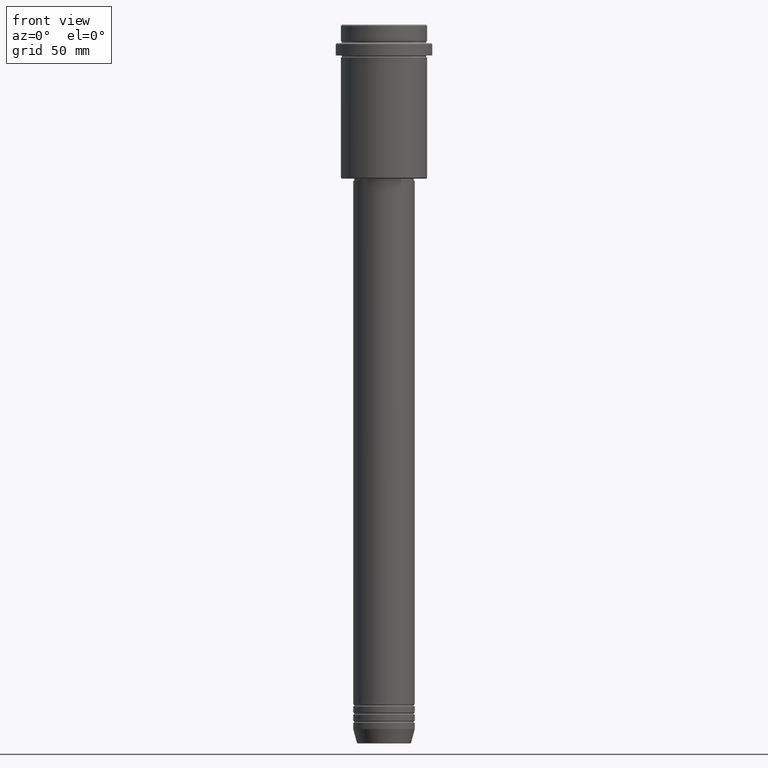
[diagram: clean part render]
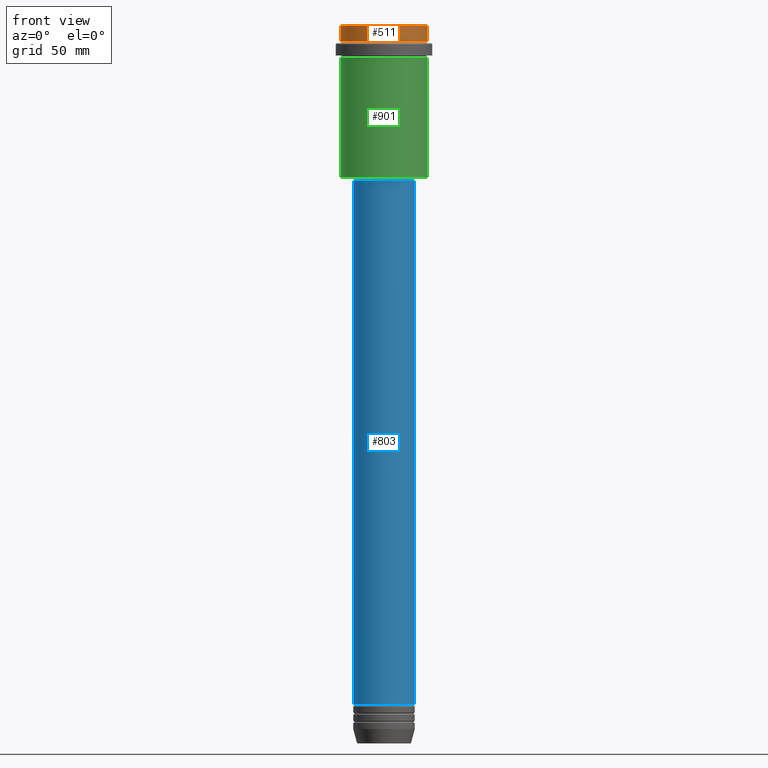
[diagram: same view with three faces highlighted in distinct colors, each labeled with its STEP entity id]
A machine part, front view with three faces highlighted in distinct colors.
Their STEP definitions:

[orange] entity #511 — the highlighted cylindrical surface (partial cylindrical patch) has radius 21 mm, axis along (-0, -0, 1).
#5 = AXIS2_PLACEMENT_3D ( 'NONE', #645, #1087, #535 ) ;
#83 = ORIENTED_EDGE ( 'NONE', *, *, #355, .T. ) ;
#102 = DIRECTION ( 'NONE',  ( 1.000000000000000000, 0.000000000000000000, 0.000000000000000000 ) ) ;
#163 = CARTESIAN_POINT ( 'NONE',  ( -20.99999999999999645, 2.571758278209441267E-15, -0.5000000000000350830 ) ) ;
#164 = CARTESIAN_POINT ( 'NONE',  ( 20.99999999999999645, 0.000000000000000000, -0.5000000000000350830 ) ) ;
#262 = ORIENTED_EDGE ( 'NONE', *, *, #608, .F. ) ;
#263 = EDGE_CURVE ( 'NONE', #827, #1275, #897, .T. ) ;
#274 = CARTESIAN_POINT ( 'NONE',  ( 0.000000000000000000, 0.000000000000000000, 0.000000000000000000 ) ) ;
#282 = ORIENTED_EDGE ( 'NONE', *, *, #263, .T. ) ;
#322 = DIRECTION ( 'NONE',  ( -0.000000000000000000, -0.000000000000000000, 1.000000000000000000 ) ) ;
#355 = EDGE_CURVE ( 'NONE', #1382, #490, #427, .T. ) ;
#369 = LINE ( 'NONE', #580, #787 ) ;
#383 = FACE_OUTER_BOUND ( 'NONE', #725, .T. ) ;
#427 = CIRCLE ( 'NONE', #5, 20.99999999999999645 ) ;
#464 = EDGE_CURVE ( 'NONE', #1275, #1382, #369, .T. ) ;
#490 = VERTEX_POINT ( 'NONE', #163 ) ;
#511 = ADVANCED_FACE ( 'NONE', ( #383 ), #829, .T. ) ;
#535 = DIRECTION ( 'NONE',  ( 1.000000000000000000, 0.000000000000000000, 0.000000000000000000 ) ) ;
#561 = AXIS2_PLACEMENT_3D ( 'NONE', #1001, #1185, #1209 ) ;
#579 = CARTESIAN_POINT ( 'NONE',  ( 20.99999999999999645, 0.000000000000000000, -7.999999999999998224 ) ) ;
#580 = CARTESIAN_POINT ( 'NONE',  ( 20.99999999999999645, 0.000000000000000000, 0.000000000000000000 ) ) ;
#608 = EDGE_CURVE ( 'NONE', #827, #490, #1094, .T. ) ;
#645 = CARTESIAN_POINT ( 'NONE',  ( 0.000000000000000000, 0.000000000000000000, -0.5000000000000350830 ) ) ;
#725 = EDGE_LOOP ( 'NONE', ( #262, #282, #888, #83 ) ) ;
#787 = VECTOR ( 'NONE', #1226, 1000.000000000000000 ) ;
#827 = VERTEX_POINT ( 'NONE', #966 ) ;
#829 = CYLINDRICAL_SURFACE ( 'NONE', #898, 20.99999999999999645 ) ;
#865 = CARTESIAN_POINT ( 'NONE',  ( -20.99999999999999645, 2.571758278209441267E-15, 0.000000000000000000 ) ) ;
#888 = ORIENTED_EDGE ( 'NONE', *, *, #464, .T. ) ;
#897 = CIRCLE ( 'NONE', #561, 20.99999999999999645 ) ;
#898 = AXIS2_PLACEMENT_3D ( 'NONE', #274, #322, #102 ) ;
#966 = CARTESIAN_POINT ( 'NONE',  ( -20.99999999999999645, 2.571758278209441267E-15, -7.999999999999998224 ) ) ;
#977 = DIRECTION ( 'NONE',  ( -0.000000000000000000, -0.000000000000000000, 1.000000000000000000 ) ) ;
#1001 = CARTESIAN_POINT ( 'NONE',  ( 0.000000000000000000, 0.000000000000000000, -7.999999999999998224 ) ) ;
#1087 = DIRECTION ( 'NONE',  ( 0.000000000000000000, 0.000000000000000000, -1.000000000000000000 ) ) ;
#1094 = LINE ( 'NONE', #865, #1190 ) ;
#1185 = DIRECTION ( 'NONE',  ( -0.000000000000000000, -0.000000000000000000, 1.000000000000000000 ) ) ;
#1190 = VECTOR ( 'NONE', #977, 1000.000000000000000 ) ;
#1209 = DIRECTION ( 'NONE',  ( 1.000000000000000000, 0.000000000000000000, 0.000000000000000000 ) ) ;
#1226 = DIRECTION ( 'NONE',  ( -0.000000000000000000, -0.000000000000000000, 1.000000000000000000 ) ) ;
#1275 = VERTEX_POINT ( 'NONE', #579 ) ;
#1382 = VERTEX_POINT ( 'NONE', #164 ) ;

[blue] entity #803 — the highlighted cylindrical surface (edge-blend (fillet) strip) has radius 15 mm, axis along (-0, -0, 1).
#6 = CARTESIAN_POINT ( 'NONE',  ( 15.00000000000000000, 0.000000000000000000, -75.99999999999992895 ) ) ;
#21 = VERTEX_POINT ( 'NONE', #394 ) ;
#141 = ORIENTED_EDGE ( 'NONE', *, *, #841, .F. ) ;
#192 = VECTOR ( 'NONE', #428, 1000.000000000000000 ) ;
#207 = EDGE_CURVE ( 'NONE', #1409, #1221, #650, .T. ) ;
#273 = AXIS2_PLACEMENT_3D ( 'NONE', #733, #931, #1368 ) ;
#292 = AXIS2_PLACEMENT_3D ( 'NONE', #1176, #758, #1276 ) ;
#378 = ORIENTED_EDGE ( 'NONE', *, *, #872, .F. ) ;
#379 = FACE_OUTER_BOUND ( 'NONE', #567, .T. ) ;
#394 = CARTESIAN_POINT ( 'NONE',  ( -15.00000000000000000, 1.836970198721029589E-15, -330.9999999999998863 ) ) ;
#428 = DIRECTION ( 'NONE',  ( -0.000000000000000000, -0.000000000000000000, 1.000000000000000000 ) ) ;
#531 = DIRECTION ( 'NONE',  ( -0.000000000000000000, -0.000000000000000000, 1.000000000000000000 ) ) ;
#567 = EDGE_LOOP ( 'NONE', ( #378, #1159, #1225, #141 ) ) ;
#650 = LINE ( 'NONE', #863, #192 ) ;
#733 = CARTESIAN_POINT ( 'NONE',  ( 0.000000000000000000, 0.000000000000000000, -330.9999999999998863 ) ) ;
#742 = CIRCLE ( 'NONE', #273, 15.00000000000000000 ) ;
#758 = DIRECTION ( 'NONE',  ( -0.000000000000000000, -0.000000000000000000, 1.000000000000000000 ) ) ;
#801 = EDGE_CURVE ( 'NONE', #21, #1409, #742, .T. ) ;
#803 = ADVANCED_FACE ( 'NONE', ( #379 ), #828, .T. ) ;
#814 = CARTESIAN_POINT ( 'NONE',  ( 0.000000000000000000, 0.000000000000000000, 0.000000000000000000 ) ) ;
#828 = CYLINDRICAL_SURFACE ( 'NONE', #876, 15.00000000000000000 ) ;
#833 = VERTEX_POINT ( 'NONE', #847 ) ;
#841 = EDGE_CURVE ( 'NONE', #833, #1221, #1263, .T. ) ;
#847 = CARTESIAN_POINT ( 'NONE',  ( -15.00000000000000000, 1.836970198721029589E-15, -75.99999999999992895 ) ) ;
#863 = CARTESIAN_POINT ( 'NONE',  ( 15.00000000000000000, 0.000000000000000000, 0.000000000000000000 ) ) ;
#872 = EDGE_CURVE ( 'NONE', #21, #833, #1415, .T. ) ;
#876 = AXIS2_PLACEMENT_3D ( 'NONE', #814, #1256, #1160 ) ;
#931 = DIRECTION ( 'NONE',  ( -0.000000000000000000, -0.000000000000000000, 1.000000000000000000 ) ) ;
#1043 = CARTESIAN_POINT ( 'NONE',  ( 15.00000000000000000, 0.000000000000000000, -330.9999999999998863 ) ) ;
#1085 = CARTESIAN_POINT ( 'NONE',  ( -15.00000000000000000, 1.836970198721029589E-15, 0.000000000000000000 ) ) ;
#1159 = ORIENTED_EDGE ( 'NONE', *, *, #801, .T. ) ;
#1160 = DIRECTION ( 'NONE',  ( 1.000000000000000000, 0.000000000000000000, 0.000000000000000000 ) ) ;
#1176 = CARTESIAN_POINT ( 'NONE',  ( 0.000000000000000000, 0.000000000000000000, -75.99999999999992895 ) ) ;
#1191 = VECTOR ( 'NONE', #531, 1000.000000000000000 ) ;
#1221 = VERTEX_POINT ( 'NONE', #6 ) ;
#1225 = ORIENTED_EDGE ( 'NONE', *, *, #207, .T. ) ;
#1256 = DIRECTION ( 'NONE',  ( -0.000000000000000000, -0.000000000000000000, 1.000000000000000000 ) ) ;
#1263 = CIRCLE ( 'NONE', #292, 15.00000000000000000 ) ;
#1276 = DIRECTION ( 'NONE',  ( 1.000000000000000000, 0.000000000000000000, 0.000000000000000000 ) ) ;
#1368 = DIRECTION ( 'NONE',  ( 1.000000000000000000, 0.000000000000000000, 0.000000000000000000 ) ) ;
#1409 = VERTEX_POINT ( 'NONE', #1043 ) ;
#1415 = LINE ( 'NONE', #1085, #1191 ) ;

[green] entity #901 — the highlighted cylindrical surface (partial cylindrical patch) has radius 21 mm, axis along (-0, -0, 1).
#74 = VERTEX_POINT ( 'NONE', #622 ) ;
#77 = DIRECTION ( 'NONE',  ( -0.000000000000000000, -0.000000000000000000, 1.000000000000000000 ) ) ;
#85 = CYLINDRICAL_SURFACE ( 'NONE', #1124, 20.99999999999999645 ) ;
#190 = VERTEX_POINT ( 'NONE', #771 ) ;
#218 = CARTESIAN_POINT ( 'NONE',  ( -20.99999999999999645, 2.571758278209441267E-15, -74.49999999999997158 ) ) ;
#227 = CARTESIAN_POINT ( 'NONE',  ( -20.99999999999999645, 2.571758278209441267E-15, 0.000000000000000000 ) ) ;
#253 = CARTESIAN_POINT ( 'NONE',  ( 0.000000000000000000, 0.000000000000000000, -16.00000000000000355 ) ) ;
#260 = DIRECTION ( 'NONE',  ( -1.000000000000000000, 0.000000000000000000, 0.000000000000000000 ) ) ;
#276 = CIRCLE ( 'NONE', #1360, 20.99999999999999645 ) ;
#319 = EDGE_CURVE ( 'NONE', #688, #74, #444, .T. ) ;
#444 = LINE ( 'NONE', #227, #498 ) ;
#475 = VECTOR ( 'NONE', #618, 1000.000000000000000 ) ;
#478 = CIRCLE ( 'NONE', #1333, 20.99999999999999645 ) ;
#482 = ORIENTED_EDGE ( 'NONE', *, *, #319, .F. ) ;
#497 = EDGE_LOOP ( 'NONE', ( #482, #1165, #965, #1119 ) ) ;
#498 = VECTOR ( 'NONE', #976, 1000.000000000000000 ) ;
#618 = DIRECTION ( 'NONE',  ( -0.000000000000000000, -0.000000000000000000, 1.000000000000000000 ) ) ;
#622 = CARTESIAN_POINT ( 'NONE',  ( -20.99999999999999645, 2.571758278209441267E-15, -16.00000000000000355 ) ) ;
#688 = VERTEX_POINT ( 'NONE', #218 ) ;
#699 = DIRECTION ( 'NONE',  ( -0.000000000000000000, -0.000000000000000000, 1.000000000000000000 ) ) ;
#769 = LINE ( 'NONE', #1182, #475 ) ;
#771 = CARTESIAN_POINT ( 'NONE',  ( 20.99999999999999645, 0.000000000000000000, -74.49999999999997158 ) ) ;
#845 = EDGE_CURVE ( 'NONE', #190, #928, #769, .T. ) ;
#867 = FACE_OUTER_BOUND ( 'NONE', #497, .T. ) ;
#901 = ADVANCED_FACE ( 'NONE', ( #867 ), #85, .T. ) ;
#928 = VERTEX_POINT ( 'NONE', #1090 ) ;
#965 = ORIENTED_EDGE ( 'NONE', *, *, #845, .T. ) ;
#976 = DIRECTION ( 'NONE',  ( -0.000000000000000000, -0.000000000000000000, 1.000000000000000000 ) ) ;
#1090 = CARTESIAN_POINT ( 'NONE',  ( 20.99999999999999645, 0.000000000000000000, -16.00000000000000355 ) ) ;
#1119 = ORIENTED_EDGE ( 'NONE', *, *, #1291, .F. ) ;
#1124 = AXIS2_PLACEMENT_3D ( 'NONE', #1410, #77, #1400 ) ;
#1138 = CARTESIAN_POINT ( 'NONE',  ( 0.000000000000000000, 0.000000000000000000, -74.49999999999997158 ) ) ;
#1165 = ORIENTED_EDGE ( 'NONE', *, *, #1389, .T. ) ;
#1182 = CARTESIAN_POINT ( 'NONE',  ( 20.99999999999999645, 0.000000000000000000, 0.000000000000000000 ) ) ;
#1258 = DIRECTION ( 'NONE',  ( 1.000000000000000000, 0.000000000000000000, 0.000000000000000000 ) ) ;
#1291 = EDGE_CURVE ( 'NONE', #74, #928, #276, .T. ) ;
#1333 = AXIS2_PLACEMENT_3D ( 'NONE', #1138, #1353, #260 ) ;
#1353 = DIRECTION ( 'NONE',  ( -0.000000000000000000, -0.000000000000000000, 1.000000000000000000 ) ) ;
#1360 = AXIS2_PLACEMENT_3D ( 'NONE', #253, #699, #1258 ) ;
#1389 = EDGE_CURVE ( 'NONE', #688, #190, #478, .T. ) ;
#1400 = DIRECTION ( 'NONE',  ( 1.000000000000000000, 0.000000000000000000, 0.000000000000000000 ) ) ;
#1410 = CARTESIAN_POINT ( 'NONE',  ( 0.000000000000000000, 0.000000000000000000, 0.000000000000000000 ) ) ;